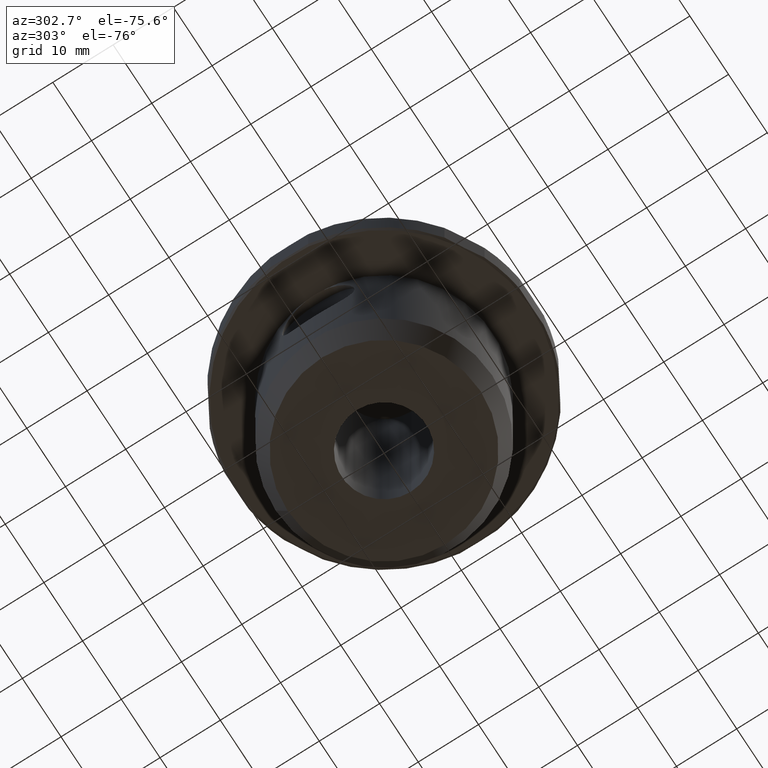
[diagram: clean part render]
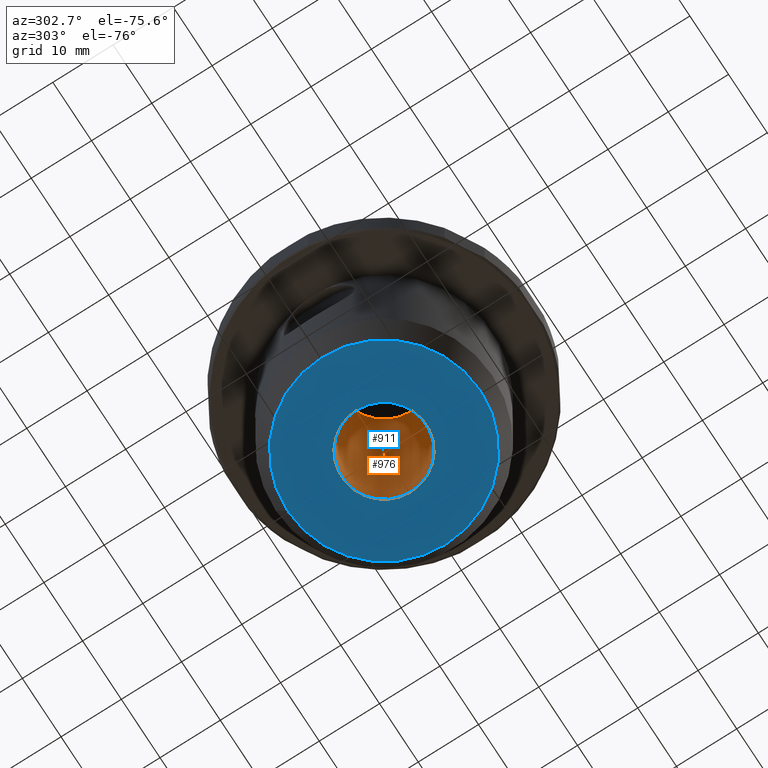
[diagram: same view with the hole feature highlighted: cylindrical wall and planar end face, labeled with their STEP entity ids]
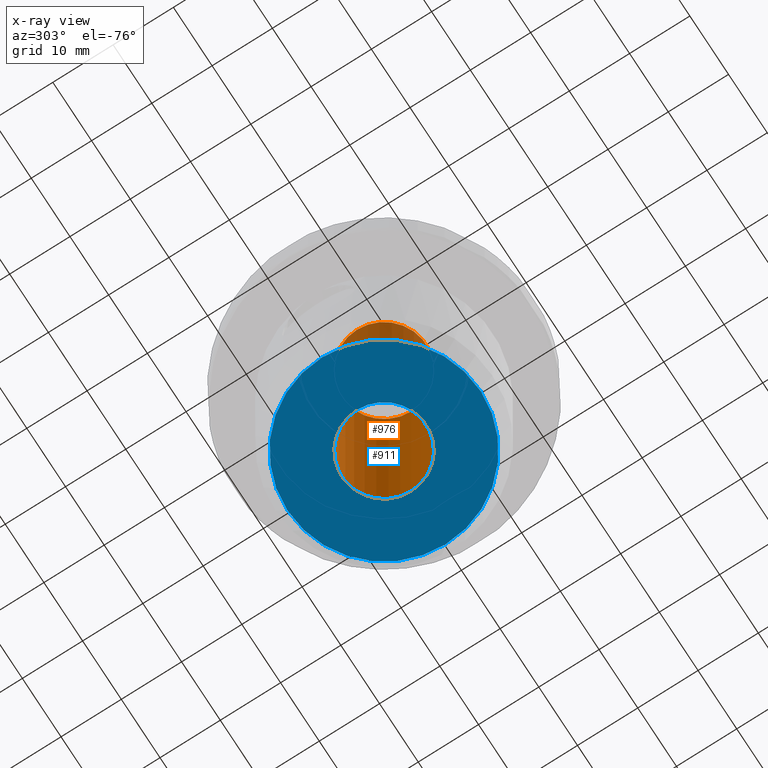
[diagram: x-ray of the same camera — body ghosted, the hole faces saturated]
A machine part, auxiliary view. The highlighted faces form one hole feature of diameter 14 mm: the cylindrical wall (entity #976, orange) and its adjacent planar end face (entity #911, blue) — they share a circular edge in the B-rep.
The next image is the same camera in x-ray (body ghosted, the hole faces saturated) — the bore reads through the body.
Wall:
#168=CYLINDRICAL_SURFACE('',#1112,7.);
#422=ORIENTED_EDGE('',*,*,#425,.F.);
#423=ORIENTED_EDGE('',*,*,#552,.T.);
#425=EDGE_CURVE('',#553,#553,#645,.T.);
#552=EDGE_CURVE('',#644,#644,#701,.T.);
#553=VERTEX_POINT('',#1396);
#644=VERTEX_POINT('',#1843);
#645=CIRCLE('',#992,7.);
#701=CIRCLE('',#1113,7.);
#795=EDGE_LOOP('',(#422));
#796=EDGE_LOOP('',(#423));
#891=FACE_BOUND('',#795,.T.);
#892=FACE_BOUND('',#796,.T.);
#976=ADVANCED_FACE('',(#891,#892),#168,.F.);
#992=AXIS2_PLACEMENT_3D('',#1395,#1119,#1120);
#1112=AXIS2_PLACEMENT_3D('',#1841,#1387,#1388);
#1113=AXIS2_PLACEMENT_3D('',#1842,#1389,#1390);
#1119=DIRECTION('',(0.,0.,1.));
#1120=DIRECTION('',(1.,0.,0.));
#1387=DIRECTION('',(0.,0.,1.));
#1388=DIRECTION('',(1.,0.,0.));
#1389=DIRECTION('',(0.,0.,1.));
#1390=DIRECTION('',(1.,0.,0.));
#1395=CARTESIAN_POINT('',(0.,0.,-45.9937822173509));
#1396=CARTESIAN_POINT('',(7.,0.,-45.9937822173509));
#1841=CARTESIAN_POINT('',(0.,0.,-0.9937822173509));
#1842=CARTESIAN_POINT('',(0.,0.,-0.993782217350899));
#1843=CARTESIAN_POINT('',(7.,0.,-0.993782217350899));
End face:
#169=ORIENTED_EDGE('',*,*,#425,.T.);
#170=ORIENTED_EDGE('',*,*,#426,.T.);
#425=EDGE_CURVE('',#553,#553,#645,.T.);
#426=EDGE_CURVE('',#554,#554,#646,.T.);
#553=VERTEX_POINT('',#1396);
#554=VERTEX_POINT('',#1398);
#645=CIRCLE('',#992,7.);
#646=CIRCLE('',#993,16.);
#702=EDGE_LOOP('',(#169));
#703=EDGE_LOOP('',(#170));
#798=FACE_BOUND('',#702,.T.);
#799=FACE_BOUND('',#703,.T.);
#894=PLANE('',#991);
#911=ADVANCED_FACE('',(#798,#799),#894,.T.);
#991=AXIS2_PLACEMENT_3D('',#1394,#1117,#1118);
#992=AXIS2_PLACEMENT_3D('',#1395,#1119,#1120);
#993=AXIS2_PLACEMENT_3D('',#1397,#1121,#1122);
#1117=DIRECTION('',(1.22464605849178E-16,1.51929083932157E-64,-1.));
#1118=DIRECTION('',(6.16297582203915E-33,1.,7.54746404904039E-49));
#1119=DIRECTION('',(0.,0.,1.));
#1120=DIRECTION('',(1.,0.,0.));
#1121=DIRECTION('',(1.22464605849178E-16,1.51929083932157E-64,-1.));
#1122=DIRECTION('',(6.16297582203915E-33,1.,7.54746404904039E-49));
#1394=CARTESIAN_POINT('',(5.63261041076081E-15,16.,-45.9937822173509));
#1395=CARTESIAN_POINT('',(0.,0.,-45.9937822173509));
#1396=CARTESIAN_POINT('',(7.,0.,-45.9937822173509));
#1397=CARTESIAN_POINT('',(5.63261041076081E-15,6.98779319885724E-63,-45.9937822173509));
#1398=CARTESIAN_POINT('',(5.63261041076081E-15,16.,-45.9937822173509));